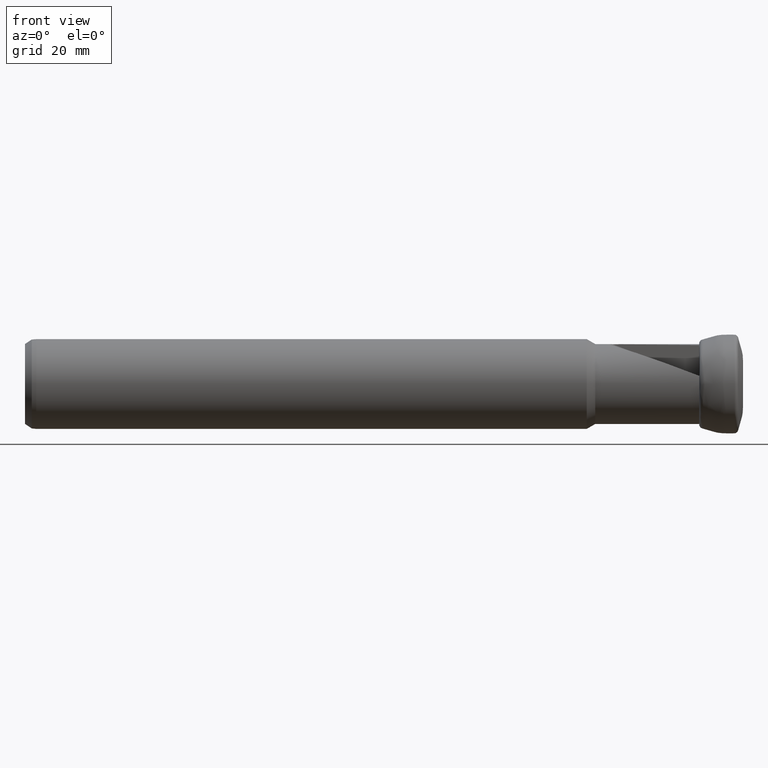
[diagram: clean part render]
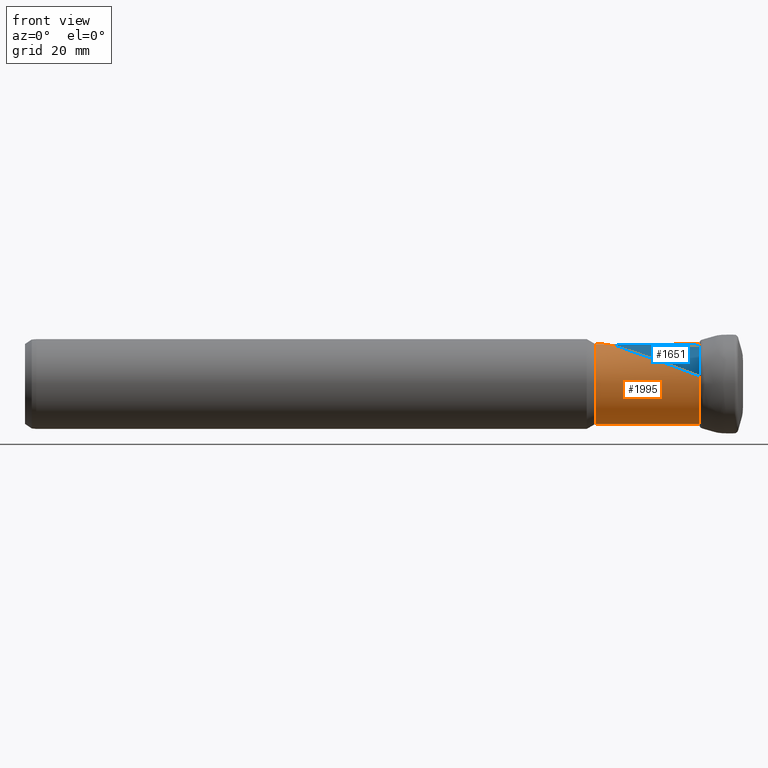
[diagram: same view with the hole feature highlighted: cylindrical wall and planar end face, labeled with their STEP entity ids]
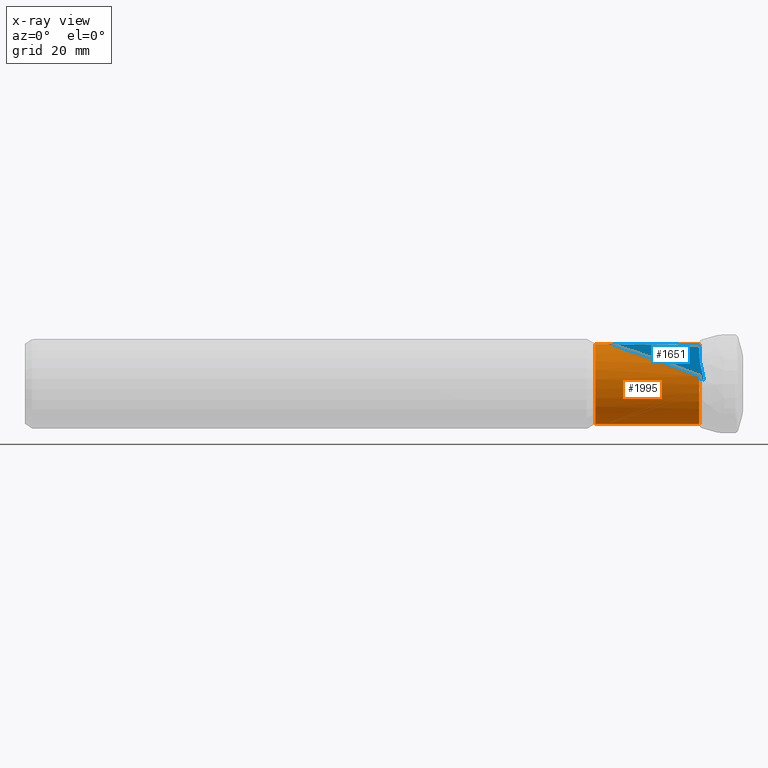
[diagram: x-ray of the same camera — body ghosted, the hole faces saturated]
A machine part, front view. The highlighted faces form one hole feature of diameter 17.8 mm: the cylindrical wall (entity #1995, orange) and its adjacent planar end face (entity #1651, blue) — they share a circular edge in the B-rep.
The next image is the same camera in x-ray (body ghosted, the hole faces saturated) — the bore reads through the body.
Wall:
#10 = VERTEX_POINT ( 'NONE', #1348 ) ;
#18 = CARTESIAN_POINT ( 'NONE',  ( -29.07023911848613200, 0.7827090062510681000, -8.865524544693883500 ) ) ;
#51 = VERTEX_POINT ( 'NONE', #1692 ) ;
#52 = CARTESIAN_POINT ( 'NONE',  ( -8.990769696988822400, -8.718197842188509100, 1.789700082265060200 ) ) ;
#78 = CARTESIAN_POINT ( 'NONE',  ( -8.990769696988824200, -2.379465993206698200E-015, 0.0000000000000000000 ) ) ;
#83 = VERTEX_POINT ( 'NONE', #1862 ) ;
#91 = VERTEX_POINT ( 'NONE', #1663 ) ;
#98 = EDGE_CURVE ( 'NONE', #390, #1373, #1040, .T. ) ;
#111 = ORIENTED_EDGE ( 'NONE', *, *, #1385, .T. ) ;
#132 = CARTESIAN_POINT ( 'NONE',  ( -9.116096190978755200, 1.716784979769731900, 8.734083698589451200 ) ) ;
#161 = CARTESIAN_POINT ( 'NONE',  ( -29.50216876316668600, -1.178148969935125500, 8.821735112573749800 ) ) ;
#168 = DIRECTION ( 'NONE',  ( -1.949127501097536000E-016, 1.000000000000000000, 0.0000000000000000000 ) ) ;
#169 = CIRCLE ( 'NONE', #1676, 8.900000000000000400 ) ;
#172 = EDGE_CURVE ( 'NONE', #1425, #1425, #1428, .T. ) ;
#177 = CARTESIAN_POINT ( 'NONE',  ( -9.028022618950736000, -1.836539934965338800, 8.709275754576573500 ) ) ;
#183 = CARTESIAN_POINT ( 'NONE',  ( -21.77210006920862300, -1.184139577664683000, 8.832450276361006700 ) ) ;
#187 = CARTESIAN_POINT ( 'NONE',  ( -8.990769696988822400, -8.718197842188509100, 1.789700082265060200 ) ) ;
#191 = CARTESIAN_POINT ( 'NONE',  ( -29.46553070968217000, 1.234419553517923900, -8.813978010290959700 ) ) ;
#195 = CARTESIAN_POINT ( 'NONE',  ( -28.47963167501467300, 0.7151032764604257100, -8.871244117240962600 ) ) ;
#196 = DIRECTION ( 'NONE',  ( 0.0000000000000000000, 0.0000000000000000000, -1.000000000000000000 ) ) ;
#205 = ORIENTED_EDGE ( 'NONE', *, *, #1808, .F. ) ;
#229 =( BOUNDED_CURVE ( )  B_SPLINE_CURVE ( 3, ( #2246, #1744, #177, #1397 ),
 .UNSPECIFIED., .F., .T. ) 
 B_SPLINE_CURVE_WITH_KNOTS ( ( 4, 4 ),
 ( 4.054906506265040500, 4.095301341503977200 ),
 .UNSPECIFIED. ) 
 CURVE ( )  GEOMETRIC_REPRESENTATION_ITEM ( )  RATIONAL_B_SPLINE_CURVE ( ( 1.000000000000000000, 0.9998640260629808600, 0.9998640260629808600, 1.000000000000000000 ) ) 
 REPRESENTATION_ITEM ( '' )  );
#251 = CARTESIAN_POINT ( 'NONE',  ( -9.073279238753617200, -1.280420181300073300, -8.808251650672131600 ) ) ;
#257 = DIRECTION ( 'NONE',  ( -1.949127501097536000E-016, 1.000000000000000000, 0.0000000000000000000 ) ) ;
#293 = EDGE_CURVE ( 'NONE', #51, #83, #630, .T. ) ;
#309 = CARTESIAN_POINT ( 'NONE',  ( -8.990769696988822400, 1.981851857103121000, 8.676535208048019100 ) ) ;
#338 = CARTESIAN_POINT ( 'NONE',  ( -29.51974380178838300, -1.114022332667445400, 8.830062266716698400 ) ) ;
#339 = CARTESIAN_POINT ( 'NONE',  ( -18.79762857501463800, 7.934618442745102300, -5.606764347449088200 ) ) ;
#351 = B_SPLINE_CURVE_WITH_KNOTS ( 'NONE', 3,
 ( #1539, #1518, #1176, #132, #1349, #309 ),
 .UNSPECIFIED., .F., .F.,
 ( 4, 2, 4 ),
 ( 0.0009313564805484714000, 0.001371488947358371100, 0.001811621414168270700 ),
 .UNSPECIFIED. ) ;
#360 = CARTESIAN_POINT ( 'NONE',  ( -29.50216876316668600, 1.178148969935125500, -8.821735112573749800 ) ) ;
#379 = VERTEX_POINT ( 'NONE', #1567 ) ;
#390 = VERTEX_POINT ( 'NONE', #702 ) ;
#411 = EDGE_CURVE ( 'NONE', #497, #379, #229, .T. ) ;
#446 = CARTESIAN_POINT ( 'NONE',  ( -15.38842133307340500, 1.630529880154107900, -8.761035140535970100 ) ) ;
#464 = CARTESIAN_POINT ( 'NONE',  ( -9.064734126057665300, 1.953638060266472900, -8.683758485325054000 ) ) ;
#483 = AXIS2_PLACEMENT_3D ( 'NONE', #1885, #855, #1030 ) ;
#497 = VERTEX_POINT ( 'NONE', #712 ) ;
#515 = CARTESIAN_POINT ( 'NONE',  ( -29.32265558037765300, -0.8655890135621768800, 8.857879171659078600 ) ) ;
#525 = EDGE_CURVE ( 'NONE', #805, #1373, #1837, .T. ) ;
#539 = CARTESIAN_POINT ( 'NONE',  ( -29.51974380178838300, 1.114022332667445400, -8.830062266716698400 ) ) ;
#560 = CYLINDRICAL_SURFACE ( 'NONE', #1758, 8.899999999999998600 ) ;
#574 = EDGE_CURVE ( 'NONE', #1159, #1424, #1232, .T. ) ;
#604 = CARTESIAN_POINT ( 'NONE',  ( -9.116096190978758800, -1.716784979769589800, -8.734083698589474300 ) ) ;
#610 = CARTESIAN_POINT ( 'NONE',  ( -8.990769696988826000, 8.718197842188510900, -1.789700082265062400 ) ) ;
#630 = B_SPLINE_CURVE_WITH_KNOTS ( 'NONE', 3,
 ( #862, #2054, #161, #338, #1203, #1559, #1383, #515, #1734, #694, #1900, #867, #2070, #1045 ),
 .UNSPECIFIED., .F., .F.,
 ( 4, 2, 2, 2, 2, 2, 4 ),
 ( 2.385244779468110100E-018, 0.0001002037556272444100, 0.0002004075112544864400, 0.0004008150225089668100, 0.0006012225337634470700, 0.0008016300450179274400, 0.001603260090035838600 ),
 .UNSPECIFIED. ) ;
#638 = CARTESIAN_POINT ( 'NONE',  ( -9.100889242875586800, 2.070196954214071000, -8.655881501659019200 ) ) ;
#672 = ORIENTED_EDGE ( 'NONE', *, *, #1041, .T. ) ;
#694 = CARTESIAN_POINT ( 'NONE',  ( -29.13431208461121000, -0.7983471691271323300, 8.864145705814216600 ) ) ;
#702 = CARTESIAN_POINT ( 'NONE',  ( -9.100889242875586800, 2.070196954214071000, -8.655881501659019200 ) ) ;
#709 = AXIS2_PLACEMENT_3D ( 'NONE', #2247, #1214, #168 ) ;
#712 = CARTESIAN_POINT ( 'NONE',  ( -9.100889242875586800, -2.070196954214071000, 8.655881501659019200 ) ) ;
#720 = CARTESIAN_POINT ( 'NONE',  ( -29.48939440890342600, 0.9839754320227732700, -8.845672102549960100 ) ) ;
#721 = CARTESIAN_POINT ( 'NONE',  ( -8.990769696988824200, -1.159912670145233100, -8.824092168468750300 ) ) ;
#742 = ORIENTED_EDGE ( 'NONE', *, *, #172, .T. ) ;
#762 = EDGE_CURVE ( 'NONE', #497, #83, #1262, .T. ) ;
#767 = CARTESIAN_POINT ( 'NONE',  ( -32.16253903091737200, 0.0000000000000000000, -8.899999999999995000 ) ) ;
#778 = CARTESIAN_POINT ( 'NONE',  ( -8.990769696988824200, -1.981851857102639100, -8.676535208048129300 ) ) ;
#805 = VERTEX_POINT ( 'NONE', #191 ) ;
#828 =( BOUNDED_CURVE ( )  B_SPLINE_CURVE ( 3, ( #638, #464, #2023, #990 ),
 .UNSPECIFIED., .F., .T. ) 
 B_SPLINE_CURVE_WITH_KNOTS ( ( 4, 4 ),
 ( 4.054906506265040500, 4.095301341502225700 ),
 .UNSPECIFIED. ) 
 CURVE ( )  GEOMETRIC_REPRESENTATION_ITEM ( )  RATIONAL_B_SPLINE_CURVE ( ( 1.000000000000000000, 0.9998640260629925200, 0.9998640260629925200, 1.000000000000000000 ) ) 
 REPRESENTATION_ITEM ( '' )  );
#849 = CARTESIAN_POINT ( 'NONE',  ( -8.990769696988824200, -2.379465993206698200E-015, 0.0000000000000000000 ) ) ;
#855 = DIRECTION ( 'NONE',  ( 1.000000000000000000, -0.0000000000000000000, -0.0000000000000000000 ) ) ;
#862 = CARTESIAN_POINT ( 'NONE',  ( -29.46553070968217000, -1.234419553517923900, 8.813978010290959700 ) ) ;
#867 = CARTESIAN_POINT ( 'NONE',  ( -28.74714014806764700, -0.7199293097031088700, 8.870977581169389800 ) ) ;
#873 = ORIENTED_EDGE ( 'NONE', *, *, #1111, .F. ) ;
#892 = CARTESIAN_POINT ( 'NONE',  ( -29.32265558037765300, 0.8655890135621768800, -8.857879171659078600 ) ) ;
#899 = DIRECTION ( 'NONE',  ( 1.000000000000000000, 1.221241693040061800E-016, -0.0000000000000000000 ) ) ;
#931 = VERTEX_POINT ( 'NONE', #52 ) ;
#941 = ORIENTED_EDGE ( 'NONE', *, *, #98, .F. ) ;
#990 = CARTESIAN_POINT ( 'NONE',  ( -8.990769696988824200, 1.718950345220464900, -8.732422900356258600 ) ) ;
#1022 = DIRECTION ( 'NONE',  ( -1.949127501097536000E-016, 1.000000000000000000, 0.0000000000000000000 ) ) ;
#1030 = DIRECTION ( 'NONE',  ( 0.0000000000000000000, 0.0000000000000000000, -1.000000000000000000 ) ) ;
#1037 = CARTESIAN_POINT ( 'NONE',  ( -26.57082517281398600, 5.093418982780001200, -8.273515537281189900 ) ) ;
#1040 =( BOUNDED_CURVE ( )  B_SPLINE_CURVE ( 3, ( #2179, #446, #2214, #1317 ),
 .UNSPECIFIED., .F., .T. ) 
 B_SPLINE_CURVE_WITH_KNOTS ( ( 4, 4 ),
 ( 1.336039592385129100, 1.488274482249704000 ),
 .UNSPECIFIED. ) 
 CURVE ( )  GEOMETRIC_REPRESENTATION_ITEM ( )  RATIONAL_B_SPLINE_CURVE ( ( 1.000000000000000000, 0.9980696438143847900, 0.9980696438143847900, 1.000000000000000000 ) ) 
 REPRESENTATION_ITEM ( '' )  );
#1041 = EDGE_CURVE ( 'NONE', #1960, #2019, #1097, .T. ) ;
#1045 = CARTESIAN_POINT ( 'NONE',  ( -28.21495713007546500, -0.7336111235906179800, 8.869713339186565900 ) ) ;
#1046 = CARTESIAN_POINT ( 'NONE',  ( -29.46553070968217000, -1.234419553517923900, 8.813978010290959700 ) ) ;
#1065 = CARTESIAN_POINT ( 'NONE',  ( -29.13431208461121000, 0.7983471691271323300, -8.864145705814216600 ) ) ;
#1097 = B_SPLINE_CURVE_WITH_KNOTS ( 'NONE', 3,
 ( #1466, #251, #1645, #604, #1817, #778 ),
 .UNSPECIFIED., .F., .F.,
 ( 4, 2, 4 ),
 ( 0.0009313564805488432800, 0.001371488947358405800, 0.001811621414167968400 ),
 .UNSPECIFIED. ) ;
#1107 = EDGE_LOOP ( 'NONE', ( #742 ) ) ;
#1111 = EDGE_CURVE ( 'NONE', #91, #379, #1480, .T. ) ;
#1141 = EDGE_LOOP ( 'NONE', ( #1447, #1590, #1807, #941, #111, #205, #672, #1541, #1238, #1671, #1842, #2114, #873, #1987 ) ) ;
#1159 = VERTEX_POINT ( 'NONE', #610 ) ;
#1176 = CARTESIAN_POINT ( 'NONE',  ( -9.117805802770451600, 1.427678605333180700, 8.785971916675062900 ) ) ;
#1203 = CARTESIAN_POINT ( 'NONE',  ( -29.51977156572775100, -1.079616902587692900, 8.834334043537786800 ) ) ;
#1214 = DIRECTION ( 'NONE',  ( 1.000000000000000000, 1.221241693040061800E-016, -0.0000000000000000000 ) ) ;
#1227 = CARTESIAN_POINT ( 'NONE',  ( -29.46553070968217000, 1.234419553517923900, -8.813978010290959700 ) ) ;
#1228 = CARTESIAN_POINT ( 'NONE',  ( -18.79762857501463800, -7.934618442745102300, 5.606764347449088200 ) ) ;
#1232 = CIRCLE ( 'NONE', #1770, 8.900000000000000400 ) ;
#1236 = CARTESIAN_POINT ( 'NONE',  ( -28.74714014806764700, 0.7199293097031088700, -8.870977581169389800 ) ) ;
#1237 = CARTESIAN_POINT ( 'NONE',  ( -8.990769696988824200, -1.981851857102639100, -8.676535208048129300 ) ) ;
#1238 = ORIENTED_EDGE ( 'NONE', *, *, #1889, .F. ) ;
#1262 =( BOUNDED_CURVE ( )  B_SPLINE_CURVE ( 3, ( #1915, #2083, #183, #1401 ),
 .UNSPECIFIED., .F., .T. ) 
 B_SPLINE_CURVE_WITH_KNOTS ( ( 4, 4 ),
 ( 1.336039592385129100, 1.488274482249704000 ),
 .UNSPECIFIED. ) 
 CURVE ( )  GEOMETRIC_REPRESENTATION_ITEM ( )  RATIONAL_B_SPLINE_CURVE ( ( 1.000000000000000000, 0.9980696438143847900, 0.9980696438143847900, 1.000000000000000000 ) ) 
 REPRESENTATION_ITEM ( '' )  );
#1297 = DIRECTION ( 'NONE',  ( 1.000000000000000000, 1.221241693040061800E-016, -0.0000000000000000000 ) ) ;
#1317 = CARTESIAN_POINT ( 'NONE',  ( -28.21495713007546500, 0.7336111235906179800, -8.869713339186565900 ) ) ;
#1348 = CARTESIAN_POINT ( 'NONE',  ( -8.990769696988824200, 1.718950345220464900, -8.732422900356258600 ) ) ;
#1349 = CARTESIAN_POINT ( 'NONE',  ( -9.070829176712228700, 1.861138657706595800, 8.704107928340679500 ) ) ;
#1373 = VERTEX_POINT ( 'NONE', #1679 ) ;
#1376 = CARTESIAN_POINT ( 'NONE',  ( -29.46553070968217000, 1.234419553517923900, -8.813978010290959700 ) ) ;
#1383 = CARTESIAN_POINT ( 'NONE',  ( -29.43541662629302300, -0.9364343904645584500, 8.850669940319006600 ) ) ;
#1385 = EDGE_CURVE ( 'NONE', #390, #10, #828, .T. ) ;
#1397 = CARTESIAN_POINT ( 'NONE',  ( -8.990769696988707000, -1.718950345209312900, 8.732422900380308700 ) ) ;
#1401 = CARTESIAN_POINT ( 'NONE',  ( -28.21495713007546500, -0.7336111235906179800, 8.869713339186565900 ) ) ;
#1410 =( BOUNDED_CURVE ( )  B_SPLINE_CURVE ( 3, ( #1046, #1901, #1228, #187 ),
 .UNSPECIFIED., .F., .F. ) 
 B_SPLINE_CURVE_WITH_KNOTS ( ( 4, 4 ),
 ( 3.440951901281752400, 4.670130388823251300 ),
 .UNSPECIFIED. ) 
 CURVE ( )  GEOMETRIC_REPRESENTATION_ITEM ( )  RATIONAL_B_SPLINE_CURVE ( ( 1.000000000000000000, 0.8780069115319479900, 0.8780069115319479900, 1.000000000000000000 ) ) 
 REPRESENTATION_ITEM ( '' )  );
#1413 = CARTESIAN_POINT ( 'NONE',  ( -28.21495713007546500, 0.7336111235906179800, -8.869713339186565900 ) ) ;
#1414 = CARTESIAN_POINT ( 'NONE',  ( 0.0000000000000000000, 0.0000000000000000000, 0.0000000000000000000 ) ) ;
#1424 = VERTEX_POINT ( 'NONE', #1505 ) ;
#1425 = VERTEX_POINT ( 'NONE', #767 ) ;
#1428 = CIRCLE ( 'NONE', #483, 8.899999999999995000 ) ;
#1447 = ORIENTED_EDGE ( 'NONE', *, *, #574, .F. ) ;
#1455 = CIRCLE ( 'NONE', #709, 8.900000000000000400 ) ;
#1466 = CARTESIAN_POINT ( 'NONE',  ( -8.990769696988824200, -1.159912670145233100, -8.824092168468750300 ) ) ;
#1480 = CIRCLE ( 'NONE', #2177, 8.900000000000000400 ) ;
#1501 = EDGE_CURVE ( 'NONE', #91, #1424, #351, .T. ) ;
#1505 = CARTESIAN_POINT ( 'NONE',  ( -8.990769696988822400, 1.981851857103121000, 8.676535208048019100 ) ) ;
#1518 = CARTESIAN_POINT ( 'NONE',  ( -9.073279238753546100, 1.280420181299851000, 8.808251650672168900 ) ) ;
#1539 = CARTESIAN_POINT ( 'NONE',  ( -8.990769696988824200, 1.159912670144842100, 8.824092168469086100 ) ) ;
#1541 = ORIENTED_EDGE ( 'NONE', *, *, #1577, .F. ) ;
#1559 = CARTESIAN_POINT ( 'NONE',  ( -29.48939440890342600, -0.9839754320227732700, 8.845672102549960100 ) ) ;
#1560 = CARTESIAN_POINT ( 'NONE',  ( -8.990769696988826000, 8.718197842188510900, -1.789700082265062400 ) ) ;
#1567 = CARTESIAN_POINT ( 'NONE',  ( -8.990769696988707000, -1.718950345209312900, 8.732422900380308700 ) ) ;
#1577 = EDGE_CURVE ( 'NONE', #931, #2019, #169, .T. ) ;
#1582 = CARTESIAN_POINT ( 'NONE',  ( -29.48562674351655100, 1.207629062357573200, -8.817730085244866300 ) ) ;
#1589 = DIRECTION ( 'NONE',  ( 1.000000000000000000, -0.0000000000000000000, -0.0000000000000000000 ) ) ;
#1590 = ORIENTED_EDGE ( 'NONE', *, *, #1785, .F. ) ;
#1645 = CARTESIAN_POINT ( 'NONE',  ( -9.117805802770446300, -1.427678605333278800, -8.785971916675047000 ) ) ;
#1663 = CARTESIAN_POINT ( 'NONE',  ( -8.990769696988824200, 1.159912670144842100, 8.824092168469086100 ) ) ;
#1671 = ORIENTED_EDGE ( 'NONE', *, *, #293, .T. ) ;
#1676 = AXIS2_PLACEMENT_3D ( 'NONE', #849, #2048, #1022 ) ;
#1679 = CARTESIAN_POINT ( 'NONE',  ( -28.21495713007546500, 0.7336111235906179800, -8.869713339186565900 ) ) ;
#1692 = CARTESIAN_POINT ( 'NONE',  ( -29.46553070968217000, -1.234419553517923900, 8.813978010290959700 ) ) ;
#1734 = CARTESIAN_POINT ( 'NONE',  ( -29.26061645304823200, -0.8399929005010043900, 8.860296226620521400 ) ) ;
#1744 = CARTESIAN_POINT ( 'NONE',  ( -9.064734126056095000, -1.953638060261418100, 8.683758485326261900 ) ) ;
#1758 = AXIS2_PLACEMENT_3D ( 'NONE', #1414, #1589, #196 ) ;
#1761 = CARTESIAN_POINT ( 'NONE',  ( -29.51977156572775100, 1.079616902587692900, -8.834334043537786800 ) ) ;
#1770 = AXIS2_PLACEMENT_3D ( 'NONE', #1929, #899, #2103 ) ;
#1785 = EDGE_CURVE ( 'NONE', #805, #1159, #2141, .T. ) ;
#1807 = ORIENTED_EDGE ( 'NONE', *, *, #525, .T. ) ;
#1808 = EDGE_CURVE ( 'NONE', #1960, #10, #1455, .T. ) ;
#1817 = CARTESIAN_POINT ( 'NONE',  ( -9.070829176712319300, -1.861138657706330500, -8.704107928340734500 ) ) ;
#1837 = B_SPLINE_CURVE_WITH_KNOTS ( 'NONE', 3,
 ( #1227, #1582, #360, #539, #1761, #720, #1923, #892, #2093, #1065, #18, #1236, #195, #1413 ),
 .UNSPECIFIED., .F., .F.,
 ( 4, 2, 2, 2, 2, 2, 4 ),
 ( 2.385244779468110100E-018, 0.0001002037556272444100, 0.0002004075112544864400, 0.0004008150225089668100, 0.0006012225337634470700, 0.0008016300450179274400, 0.001603260090035838600 ),
 .UNSPECIFIED. ) ;
#1842 = ORIENTED_EDGE ( 'NONE', *, *, #762, .F. ) ;
#1855 = FACE_OUTER_BOUND ( 'NONE', #1107, .T. ) ;
#1862 = CARTESIAN_POINT ( 'NONE',  ( -28.21495713007546500, -0.7336111235906179800, 8.869713339186565900 ) ) ;
#1885 = CARTESIAN_POINT ( 'NONE',  ( -32.16253903091737200, 0.0000000000000000000, 0.0000000000000000000 ) ) ;
#1889 = EDGE_CURVE ( 'NONE', #51, #931, #1410, .T. ) ;
#1900 = CARTESIAN_POINT ( 'NONE',  ( -29.07023911848613200, -0.7827090062510681000, 8.865524544693883500 ) ) ;
#1901 = CARTESIAN_POINT ( 'NONE',  ( -26.57082517281398600, -5.093418982780001200, 8.273515537281189900 ) ) ;
#1915 = CARTESIAN_POINT ( 'NONE',  ( -9.100889242875586800, -2.070196954214071000, 8.655881501659019200 ) ) ;
#1923 = CARTESIAN_POINT ( 'NONE',  ( -29.43541662629302300, 0.9364343904645584500, -8.850669940319006600 ) ) ;
#1929 = CARTESIAN_POINT ( 'NONE',  ( -8.990769696988824200, -2.379465993206698200E-015, 0.0000000000000000000 ) ) ;
#1960 = VERTEX_POINT ( 'NONE', #721 ) ;
#1964 = FACE_OUTER_BOUND ( 'NONE', #1141, .T. ) ;
#1987 = ORIENTED_EDGE ( 'NONE', *, *, #1501, .T. ) ;
#1995 = ADVANCED_FACE ( 'NONE', ( #1964, #1855 ), #560, .T. ) ;
#2019 = VERTEX_POINT ( 'NONE', #1237 ) ;
#2023 = CARTESIAN_POINT ( 'NONE',  ( -9.028022618953922800, 1.836539934975494900, -8.709275754574360200 ) ) ;
#2048 = DIRECTION ( 'NONE',  ( 1.000000000000000000, 1.221241693040061800E-016, -0.0000000000000000000 ) ) ;
#2054 = CARTESIAN_POINT ( 'NONE',  ( -29.48562674351655100, -1.207629062357573200, 8.817730085244866300 ) ) ;
#2070 = CARTESIAN_POINT ( 'NONE',  ( -28.47963167501467300, -0.7151032764604257100, 8.871244117240962600 ) ) ;
#2083 = CARTESIAN_POINT ( 'NONE',  ( -15.38842133307340500, -1.630529880154107900, 8.761035140535970100 ) ) ;
#2093 = CARTESIAN_POINT ( 'NONE',  ( -29.26061645304823200, 0.8399929005010043900, -8.860296226620521400 ) ) ;
#2103 = DIRECTION ( 'NONE',  ( -1.949127501097536000E-016, 1.000000000000000000, 0.0000000000000000000 ) ) ;
#2114 = ORIENTED_EDGE ( 'NONE', *, *, #411, .T. ) ;
#2141 =( BOUNDED_CURVE ( )  B_SPLINE_CURVE ( 3, ( #1376, #1037, #339, #1560 ),
 .UNSPECIFIED., .F., .T. ) 
 B_SPLINE_CURVE_WITH_KNOTS ( ( 4, 4 ),
 ( 3.440951901281752400, 4.670130388823251300 ),
 .UNSPECIFIED. ) 
 CURVE ( )  GEOMETRIC_REPRESENTATION_ITEM ( )  RATIONAL_B_SPLINE_CURVE ( ( 1.000000000000000000, 0.8780069115319479900, 0.8780069115319479900, 1.000000000000000000 ) ) 
 REPRESENTATION_ITEM ( '' )  );
#2177 = AXIS2_PLACEMENT_3D ( 'NONE', #78, #1297, #257 ) ;
#2179 = CARTESIAN_POINT ( 'NONE',  ( -9.100889242875586800, 2.070196954214071000, -8.655881501659019200 ) ) ;
#2214 = CARTESIAN_POINT ( 'NONE',  ( -21.77210006920862300, 1.184139577664683000, -8.832450276361006700 ) ) ;
#2246 = CARTESIAN_POINT ( 'NONE',  ( -9.100889242875586800, -2.070196954214071000, 8.655881501659019200 ) ) ;
#2247 = CARTESIAN_POINT ( 'NONE',  ( -8.990769696988824200, -2.379465993206698200E-015, 0.0000000000000000000 ) ) ;
End face:
#32 = CARTESIAN_POINT ( 'NONE',  ( -8.882293824719804200, -2.085482634911134600, 5.016733428767652800 ) ) ;
#83 = VERTEX_POINT ( 'NONE', #1862 ) ;
#113 = AXIS2_PLACEMENT_3D ( 'NONE', #1712, #1364, #324 ) ;
#147 = PLANE ( 'NONE',  #113 ) ;
#183 = CARTESIAN_POINT ( 'NONE',  ( -21.77210006920862300, -1.184139577664683000, 8.832450276361006700 ) ) ;
#199 = CARTESIAN_POINT ( 'NONE',  ( -8.116940390317150600, -2.139001360588888900, 1.556299355689921800 ) ) ;
#208 = CARTESIAN_POINT ( 'NONE',  ( -8.981732298751913000, -2.078529219437547800, 5.890643913142891800 ) ) ;
#228 = CARTESIAN_POINT ( 'NONE',  ( -8.015698933713068200, -2.146080852885728300, 0.9751208252217595800 ) ) ;
#310 = VECTOR ( 'NONE', #1756, 1000.000000000000100 ) ;
#324 = DIRECTION ( 'NONE',  ( 0.9975640502598252000, -0.06975647374411163300, 0.0000000000000000000 ) ) ;
#341 = ORIENTED_EDGE ( 'NONE', *, *, #878, .T. ) ;
#363 = FACE_OUTER_BOUND ( 'NONE', #1302, .T. ) ;
#383 = CARTESIAN_POINT ( 'NONE',  ( -8.991770523979493400, -2.077827278349817100, 6.478914061141931100 ) ) ;
#497 = VERTEX_POINT ( 'NONE', #712 ) ;
#499 = CARTESIAN_POINT ( 'NONE',  ( -7.071151805141628400, -2.212130022317110100, 0.6059580263794764900 ) ) ;
#551 = CARTESIAN_POINT ( 'NONE',  ( -8.229308187750618200, -2.131143838749259200, 2.135495155395864800 ) ) ;
#561 = CARTESIAN_POINT ( 'NONE',  ( -8.993221228421900200, -2.077725835213089400, 6.920728547210185200 ) ) ;
#712 = CARTESIAN_POINT ( 'NONE',  ( -9.100889242875586800, -2.070196954214071000, 8.655881501659019200 ) ) ;
#733 = CARTESIAN_POINT ( 'NONE',  ( -8.413342116824189500, -2.118274932799717000, 3.001529897633975300 ) ) ;
#738 = CARTESIAN_POINT ( 'NONE',  ( -8.995002365273435900, -2.077601285991435900, 7.657150121639649100 ) ) ;
#762 = EDGE_CURVE ( 'NONE', #497, #83, #1262, .T. ) ;
#783 = CARTESIAN_POINT ( 'NONE',  ( -8.993434718082498900, -2.077710906561752100, 7.951948291668149900 ) ) ;
#803 = EDGE_CURVE ( 'NONE', #497, #1194, #1757, .T. ) ;
#878 = EDGE_CURVE ( 'NONE', #2154, #1194, #2238, .T. ) ;
#905 = CARTESIAN_POINT ( 'NONE',  ( -8.617640656768758200, -2.103988987216689000, 3.864814927849501200 ) ) ;
#979 = ORIENTED_EDGE ( 'NONE', *, *, #762, .T. ) ;
#1078 = CARTESIAN_POINT ( 'NONE',  ( -8.827446252058553700, -2.089317950810174500, 4.727614638186271800 ) ) ;
#1121 = ORIENTED_EDGE ( 'NONE', *, *, #803, .F. ) ;
#1194 = VERTEX_POINT ( 'NONE', #783 ) ;
#1250 = CARTESIAN_POINT ( 'NONE',  ( -8.959535651102967800, -2.080081360243470000, 5.598238119640487100 ) ) ;
#1262 =( BOUNDED_CURVE ( )  B_SPLINE_CURVE ( 3, ( #1915, #2083, #183, #1401 ),
 .UNSPECIFIED., .F., .T. ) 
 B_SPLINE_CURVE_WITH_KNOTS ( ( 4, 4 ),
 ( 1.336039592385129100, 1.488274482249704000 ),
 .UNSPECIFIED. ) 
 CURVE ( )  GEOMETRIC_REPRESENTATION_ITEM ( )  RATIONAL_B_SPLINE_CURVE ( ( 1.000000000000000000, 0.9980696438143847900, 0.9980696438143847900, 1.000000000000000000 ) ) 
 REPRESENTATION_ITEM ( '' )  );
#1302 = EDGE_LOOP ( 'NONE', ( #1746, #341, #1121, #979 ) ) ;
#1364 = DIRECTION ( 'NONE',  ( 0.06975647374411163300, 0.9975640502598252000, 7.211082859309714300E-015 ) ) ;
#1401 = CARTESIAN_POINT ( 'NONE',  ( -28.21495713007546500, -0.7336111235906179800, 8.869713339186565900 ) ) ;
#1418 = CARTESIAN_POINT ( 'NONE',  ( -8.061466755409496100, -2.142880455024907400, 1.266574885752041800 ) ) ;
#1427 = CARTESIAN_POINT ( 'NONE',  ( -8.992408781931603200, -2.077782647006026600, 6.331529630373915500 ) ) ;
#1429 = VECTOR ( 'NONE', #1545, 1000.000000000000200 ) ;
#1545 = DIRECTION ( 'NONE',  ( 0.9294216745817887000, -0.06499149465468784200, -0.3632512304729789700 ) ) ;
#1594 = CARTESIAN_POINT ( 'NONE',  ( -8.015698933713068200, -2.146080852885728300, 0.9751208252217595800 ) ) ;
#1601 = CARTESIAN_POINT ( 'NONE',  ( -8.992736701046155200, -2.077759716667774400, 6.773457148420619400 ) ) ;
#1651 = ADVANCED_FACE ( 'NONE', ( #363 ), #147, .F. ) ;
#1690 = EDGE_CURVE ( 'NONE', #83, #2154, #2232, .T. ) ;
#1712 = CARTESIAN_POINT ( 'NONE',  ( -6.199978409830289500, -2.273048400501239500, 2.845858525304327800 ) ) ;
#1746 = ORIENTED_EDGE ( 'NONE', *, *, #1690, .T. ) ;
#1756 = DIRECTION ( 'NONE',  ( 0.1508923564914393400, -0.01055142143608079700, -0.9884938868086835500 ) ) ;
#1757 = LINE ( 'NONE', #1920, #310 ) ;
#1773 = CARTESIAN_POINT ( 'NONE',  ( -8.287480493149187700, -2.127076034889338300, 2.424738718171057800 ) ) ;
#1781 = CARTESIAN_POINT ( 'NONE',  ( -8.994678424361387300, -2.077623938146667500, 7.362542379772608400 ) ) ;
#1862 = CARTESIAN_POINT ( 'NONE',  ( -28.21495713007546500, -0.7336111235906179800, 8.869713339186565900 ) ) ;
#1915 = CARTESIAN_POINT ( 'NONE',  ( -9.100889242875586800, -2.070196954214071000, 8.655881501659019200 ) ) ;
#1920 = CARTESIAN_POINT ( 'NONE',  ( -9.450501123550193200, -2.045749709980941900, 10.94618443573866200 ) ) ;
#1934 = CARTESIAN_POINT ( 'NONE',  ( -8.480014286344310600, -2.113612760539820300, 3.289389212459701300 ) ) ;
#1942 = CARTESIAN_POINT ( 'NONE',  ( -8.993434718082498900, -2.077710906561752100, 7.951948291668149900 ) ) ;
#2083 = CARTESIAN_POINT ( 'NONE',  ( -15.38842133307340500, -1.630529880154107900, 8.761035140535970100 ) ) ;
#2108 = CARTESIAN_POINT ( 'NONE',  ( -8.691102657800060500, -2.098852023685584500, 4.152059784372278600 ) ) ;
#2154 = VERTEX_POINT ( 'NONE', #228 ) ;
#2232 = LINE ( 'NONE', #499, #1429 ) ;
#2238 = B_SPLINE_CURVE_WITH_KNOTS ( 'NONE', 3,
 ( #1594, #1418, #199, #551, #1773, #733, #1934, #905, #2108, #1078, #32, #1250, #208, #1427, #383, #1601, #561, #1781, #738, #1942 ),
 .UNSPECIFIED., .F., .F.,
 ( 4, 2, 2, 2, 2, 2, 2, 2, 2, 4 ),
 ( 0.0005874104124397604200, 0.001472366179296375200, 0.002357321946152990100, 0.003242277713009604500, 0.004127233479866219800, 0.005012189246722834200, 0.005897145013579448700, 0.006339622897007757600, 0.006782100780436066600, 0.007667056547292686200 ),
 .UNSPECIFIED. ) ;